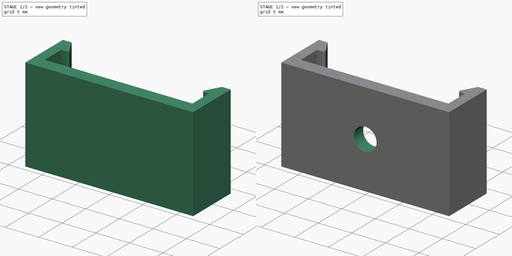
[diagram: build sequence overview — one tinted view per stage of 2, left to right]
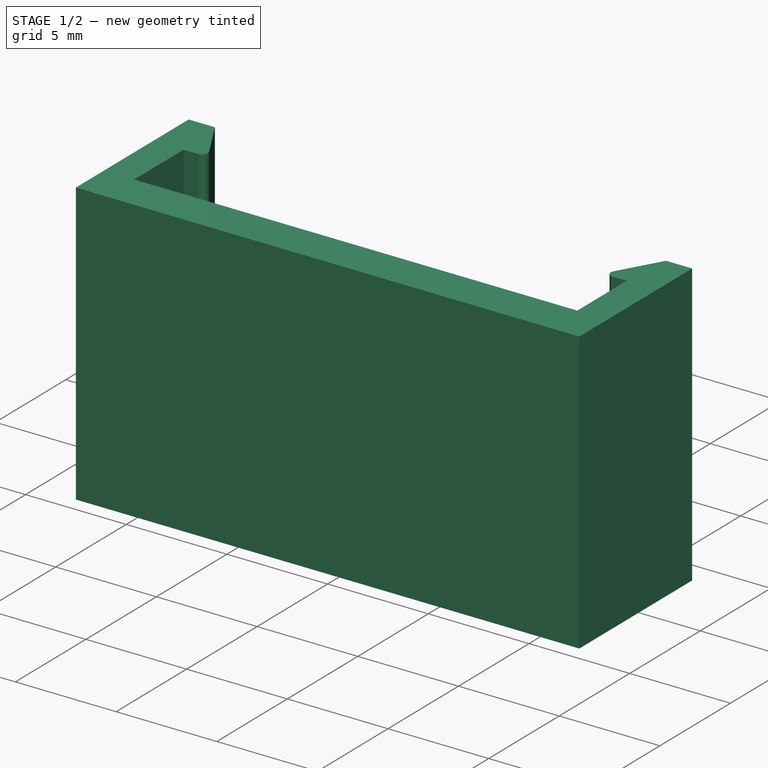
[diagram: stage 1 of 2 — iso view after this stage's code; geometry added in this stage tinted green]
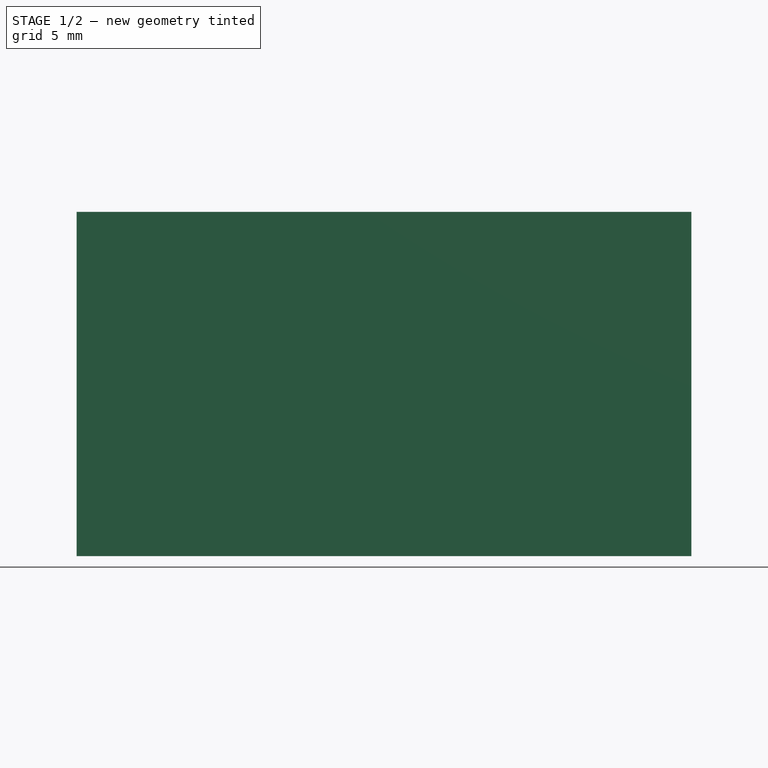
[diagram: stage 1 of 2 — front view after this stage's code; geometry added in this stage tinted green]
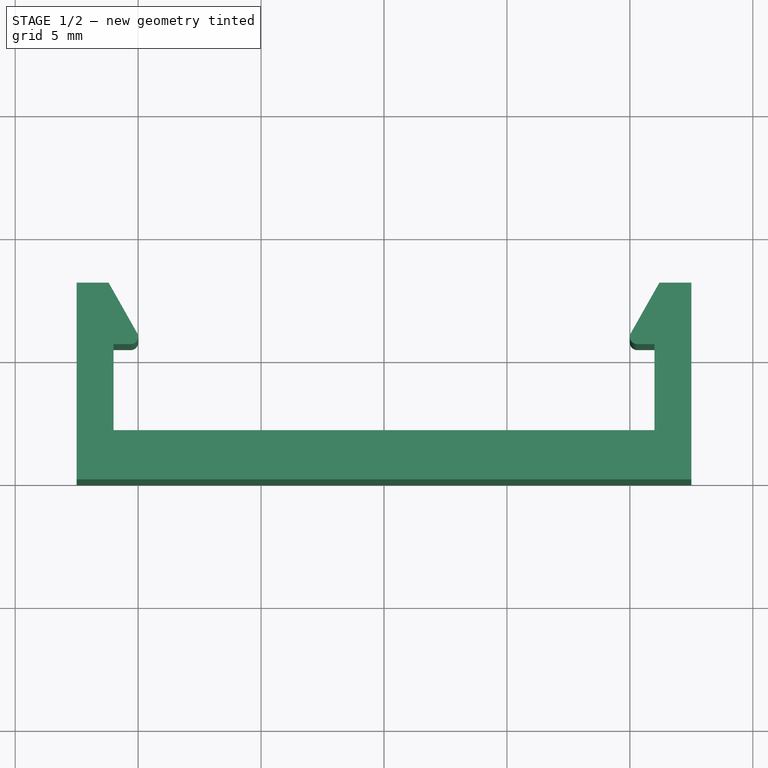
[diagram: stage 1 of 2 — top view after this stage's code; geometry added in this stage tinted green]
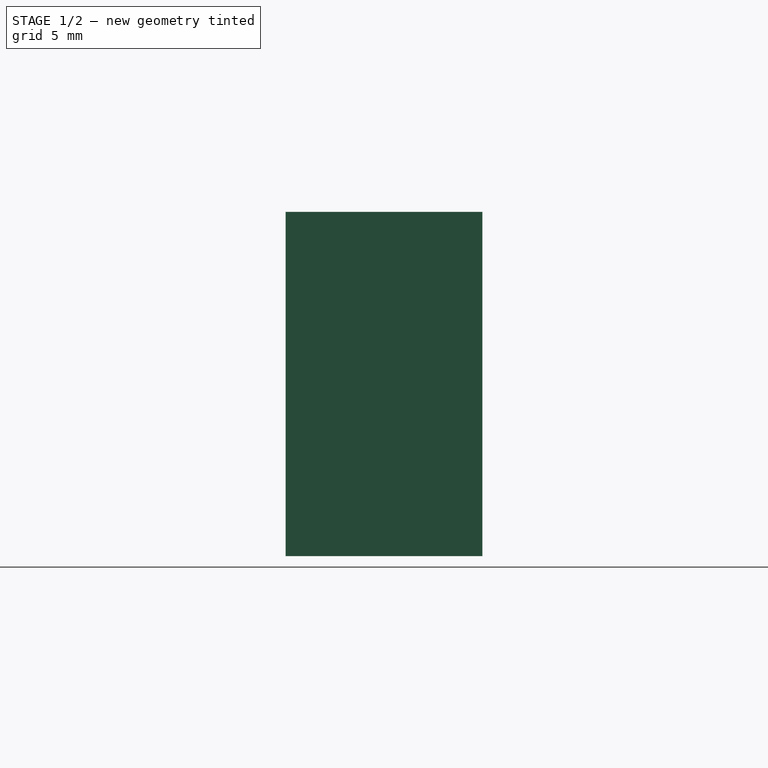
[diagram: stage 1 of 2 — right view after this stage's code; geometry added in this stage tinted green]
FCSTD DOCUMENT  (FreeCAD 0.16R5235 (Git))
Label: led-clamp
License: All rights reserved
LicenseURL: https://ru.wikipedia.org/wiki/All_rights_reserved
objects: Sketcher::SketchObject×2, PartDesign::Pad×1, PartDesign::Pocket×1
note: 6 computed .brp shape members not serialized (recipe doc carries the construction recipe); baked Part::Feature solids carry a one-line shape summary decoded from their .brp

FEATURE [Sketcher::SketchObject] Sketch
  sketch-geometry (15):
    g0: LineSegment StartX=-12.5 StartY=0 StartZ=0 EndX=12.5 EndY=0 EndZ=0
    g1: LineSegment StartX=12.5 StartY=0 StartZ=0 EndX=12.5 EndY=8 EndZ=0
    g2: LineSegment StartX=11 StartY=5.5 StartZ=0 EndX=11 EndY=2 EndZ=0
    g3: LineSegment StartX=11 StartY=2 StartZ=0 EndX=-11 EndY=2 EndZ=0
    g4: LineSegment StartX=-11 StartY=2 StartZ=0 EndX=-11 EndY=5.5 EndZ=0
    g5: LineSegment StartX=-11 StartY=5.5 StartZ=0 EndX=-10.3 EndY=5.5 EndZ=0
    g6: LineSegment StartX=-10.0389 StartY=5.94773 StartZ=0 EndX=-11.2 EndY=8 EndZ=0
    g7: LineSegment StartX=-12.5 StartY=8 StartZ=0 EndX=-12.5 EndY=0 EndZ=0
    g8: LineSegment StartX=-11.2 StartY=8 StartZ=0 EndX=-12.5 EndY=8 EndZ=0
    g9: ArcOfCircle CenterX=-10.3 CenterY=5.8 CenterZ=0 NormalX=0 NormalY=0 NormalZ=1 Radius=0.3 StartAngle=4.71239 EndAngle=6.79805
    g10: LineSegment StartX=12.5 StartY=8 StartZ=0 EndX=11.2 EndY=8 EndZ=0
    g11: LineSegment StartX=11.2 StartY=8 StartZ=0 EndX=10.0389 EndY=5.94773 EndZ=0
    g12: LineSegment StartX=10.3 StartY=5.5 StartZ=0 EndX=11 EndY=5.5 EndZ=0
    g13: ArcOfCircle CenterX=10.3 CenterY=5.8 CenterZ=0 NormalX=0 NormalY=0 NormalZ=1 Radius=0.3 StartAngle=2.62673 EndAngle=4.71239
    g14: LineSegment [constr] StartX=-10 StartY=5.8 StartZ=0 EndX=0 EndY=5.8 EndZ=0
  constraints (44):
    c: Vertical(g7)
    c: Coincident(g8,g6)
    c: Coincident(g8,g7)
    c: Horizontal(g8)
    c: Horizontal(g5)
    c: Coincident(g5,g4)
    c: Tangent(g6,g9) = -1.5708
    c: Tangent(g5,g9) = -1.5708
    c: Radius(g9) = 0.3
    c: DistanceX(g0) = 25
    c: DistanceX(g0,g3) = 1.5
    c: Coincident(g4,g3)
    c: Vertical(g4)
    c: Coincident(g0,g7)
    c: Horizontal(g3)
    c: Horizontal(g0)
    c: Coincident(g0,g1)
    c: Coincident(g2,g3)
    c: Vertical(g1)
    c: Vertical(g2)
    c: Equal(g1,g7)
    c: Equal(g4,g2)
    c: DistanceY(g2,g0) = -2
    c: DistanceX(g2,g0) = 1.5
    c: DistanceY(g7) = -8
    c: Symmetric(g0,g0,g-2)
    c: Coincident(g10,g1)
    c: Horizontal(g10)
    c: Coincident(g11,g10)
    c: Coincident(g12,g2)
    c: Horizontal(g12)
    c: Tangent(g11,g13) = -1.5708
    c: Tangent(g12,g13) = -1.5708
    c: Equal(g9,g13)
    c: Equal(g12,g5)
    c: Equal(g10,g8)
    c: DistanceX(g7,g6) = 1.3
    c: PointOnObject(g14,g9)
    c: PointOnObject(g14,g-2)
    c: Horizontal(g14)
    c: Perpendicular(g9,g14)
    c: DistanceX(g14,g7) = -2.5
    c: DistanceY(g4) = 3.5
    c: PointOnObject(g-1,g0)
FEATURE [PartDesign::Pad] Pad
  Length = 14
  Length2 = 100
  Sketch = -> Sketch
  Type = 0
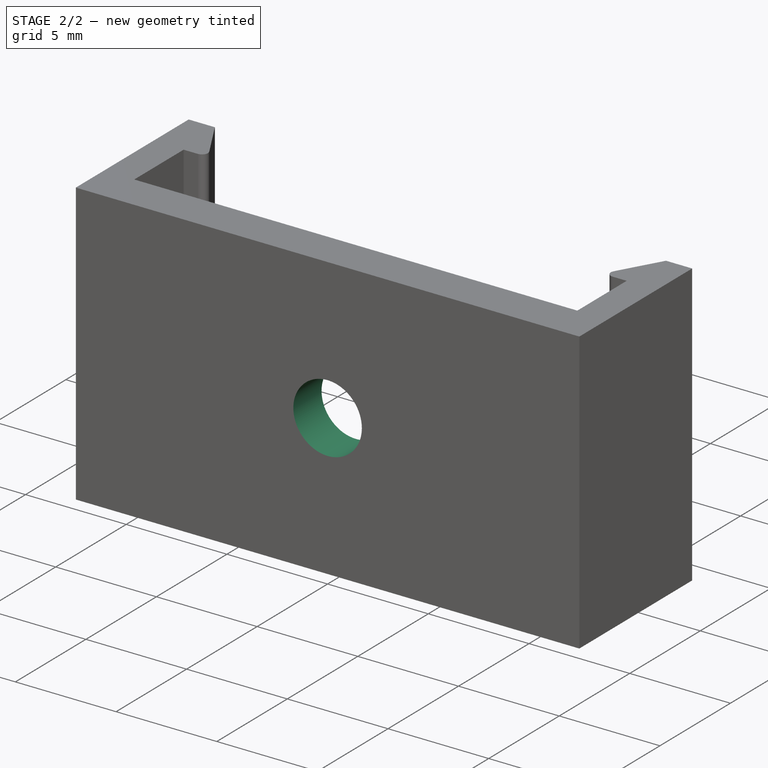
[diagram: stage 2 of 2 — iso view after this stage's code; geometry added in this stage tinted green]
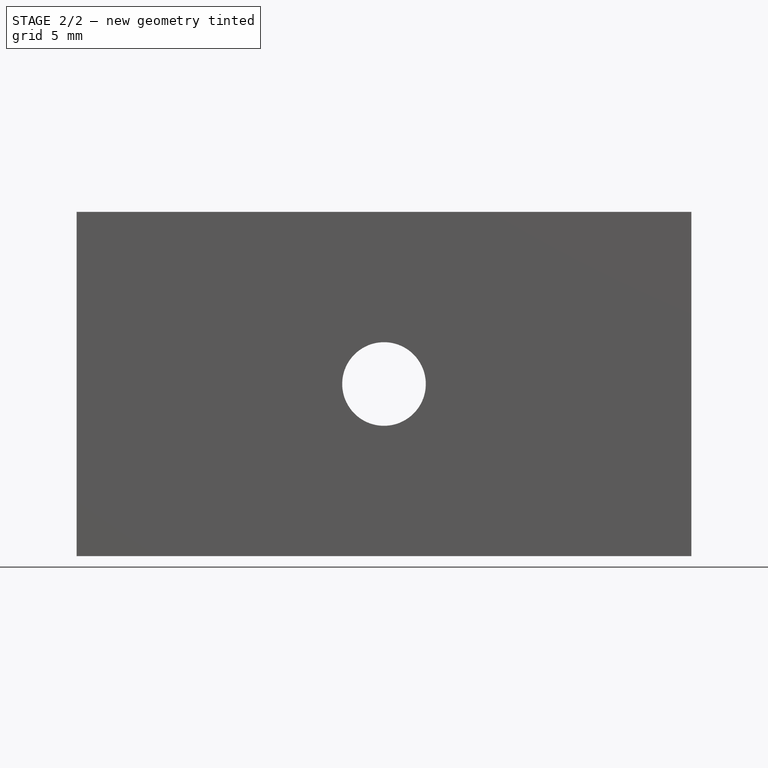
[diagram: stage 2 of 2 — front view after this stage's code; geometry added in this stage tinted green]
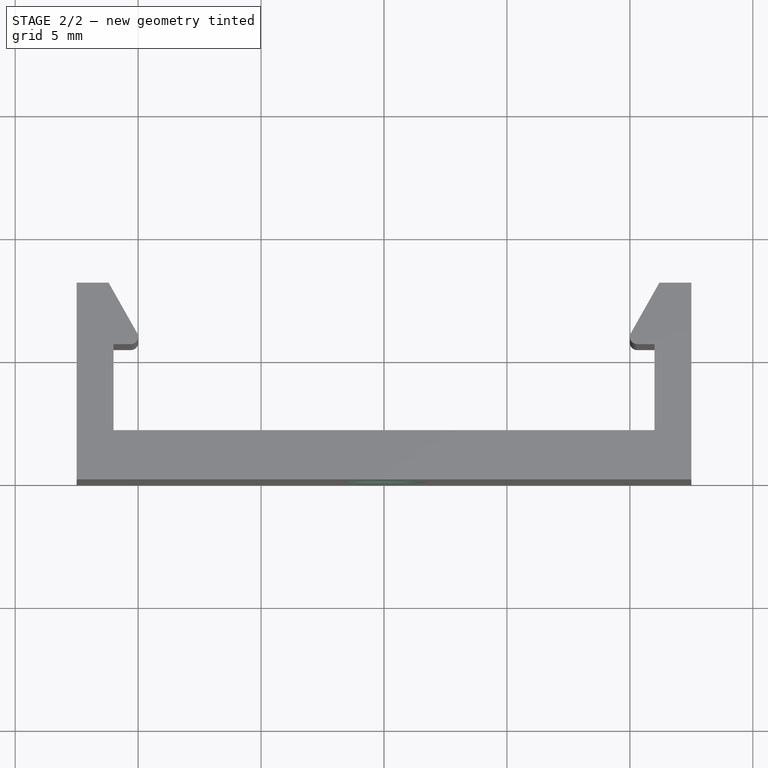
[diagram: stage 2 of 2 — top view after this stage's code; geometry added in this stage tinted green]
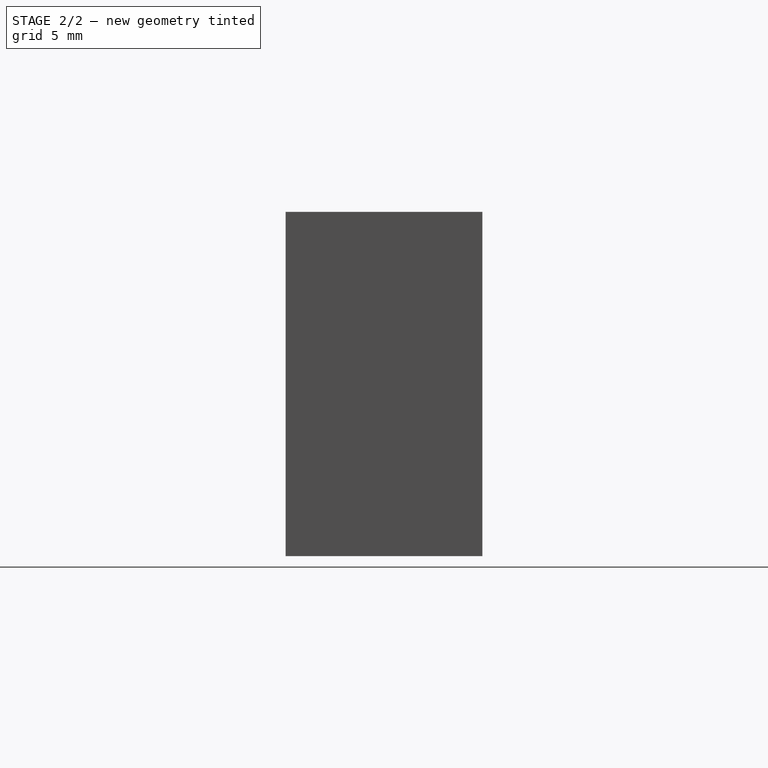
[diagram: stage 2 of 2 — right view after this stage's code; geometry added in this stage tinted green]
FEATURE [Sketcher::SketchObject] Sketch001
  ExternalGeometry = -> [Pad]
  Placement = pos=(0,0,0) rot=(1,0,0;1.5708rad)
  Support = -> Pad [Face1]
  sketch-geometry (3):
    g0: LineSegment [constr] StartX=0 StartY=0 StartZ=0 EndX=0 EndY=7 EndZ=0
    g1: LineSegment [constr] StartX=0 StartY=7 StartZ=0 EndX=0 EndY=14 EndZ=0
    g2: Circle CenterX=0 CenterY=7 CenterZ=0 NormalX=0 NormalY=0 NormalZ=1 Radius=1.7
  constraints (7):
    c: PointOnObject(g0,g-2)
    c: Vertical(g0)
    c: Coincident(g1,g0)
    c: Vertical(g1)
    c: Equal(g1,g0)
    c: Coincident(g2,g0)
    c: Radius(g2) = 1.7
FEATURE [PartDesign::Pocket] Pocket
  Length = 5
  Sketch = -> Sketch001
  Type = 1
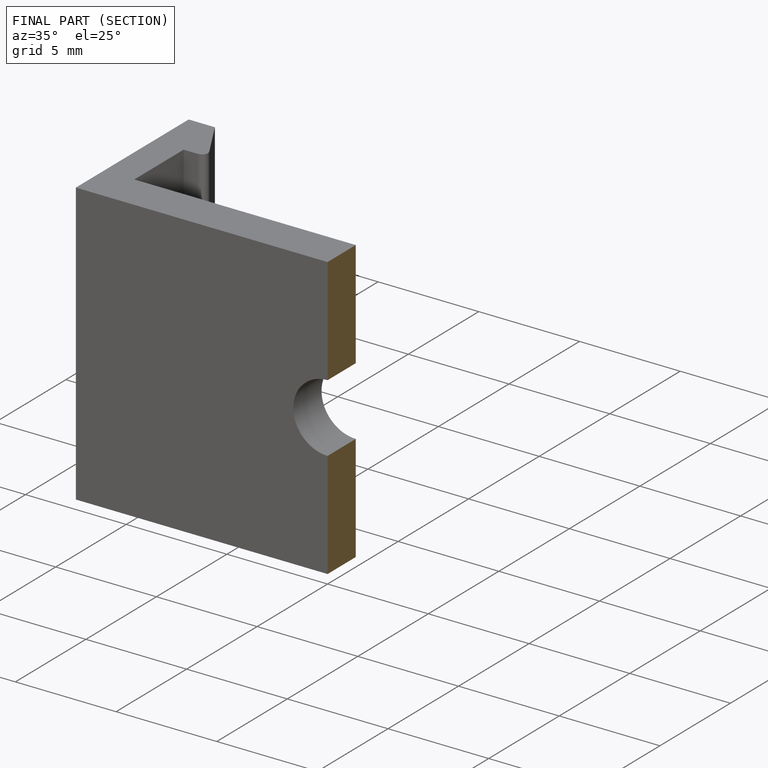
[diagram: finished part — half-section view (interior)]
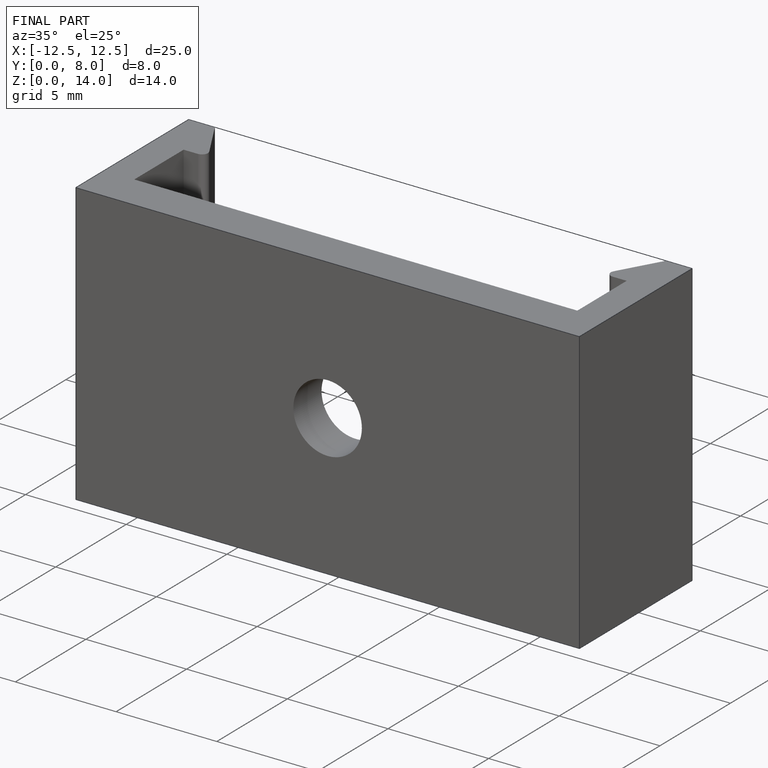
[diagram: finished part — iso view with bounding-box wireframe]
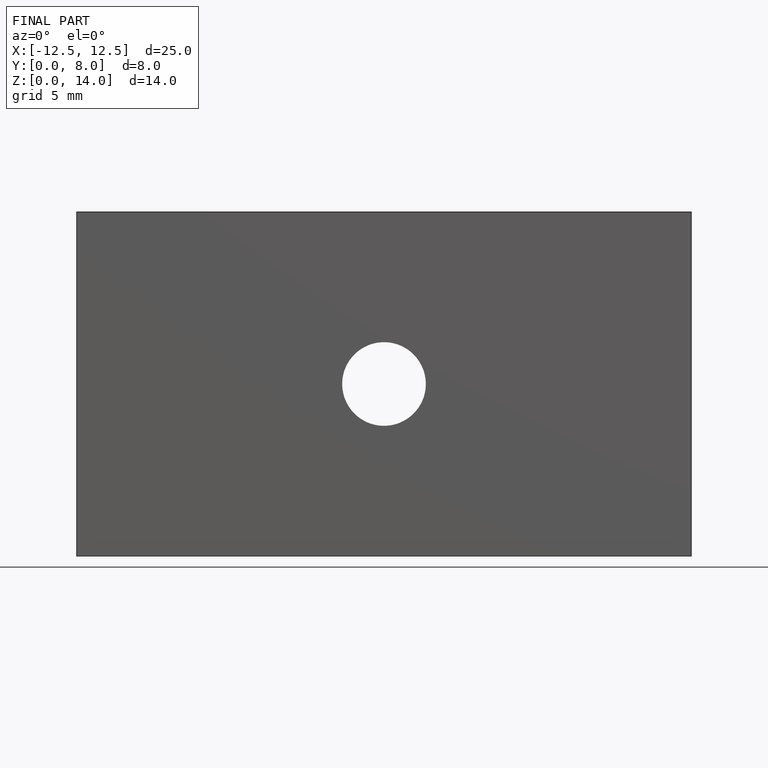
[diagram: finished part — front view with bounding-box wireframe]
